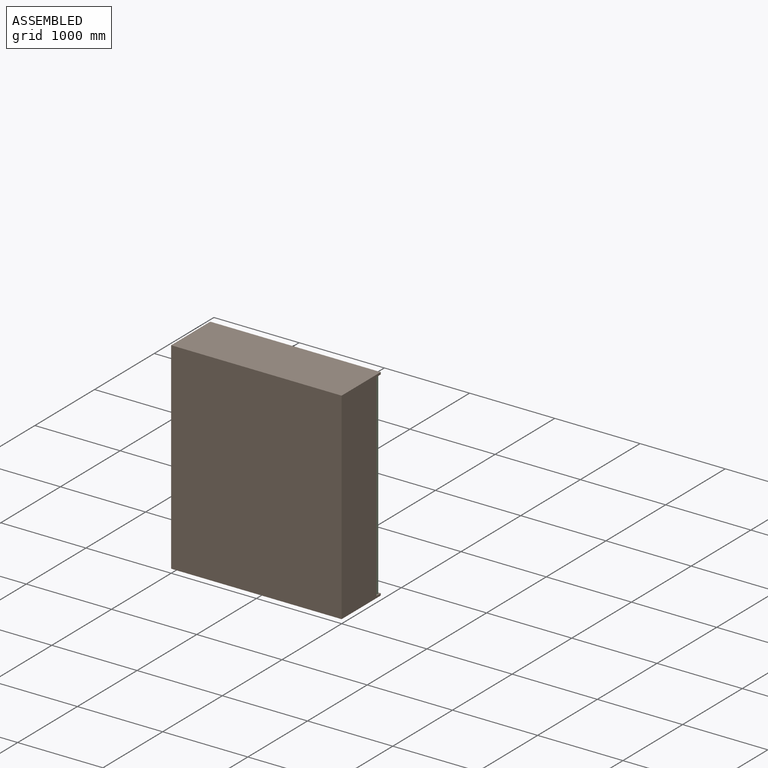
[diagram: assembled view]
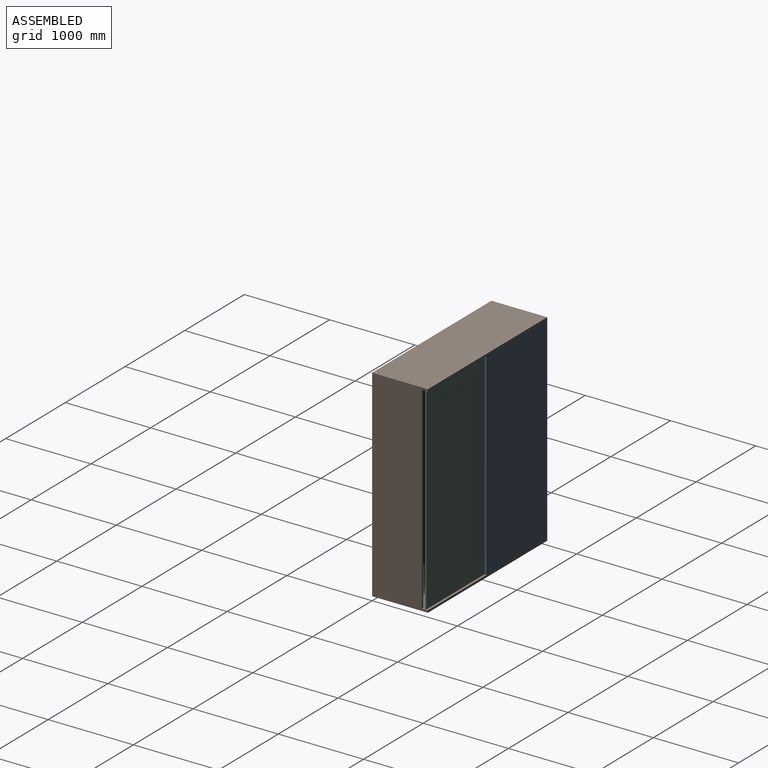
[diagram: assembled view, second angle]
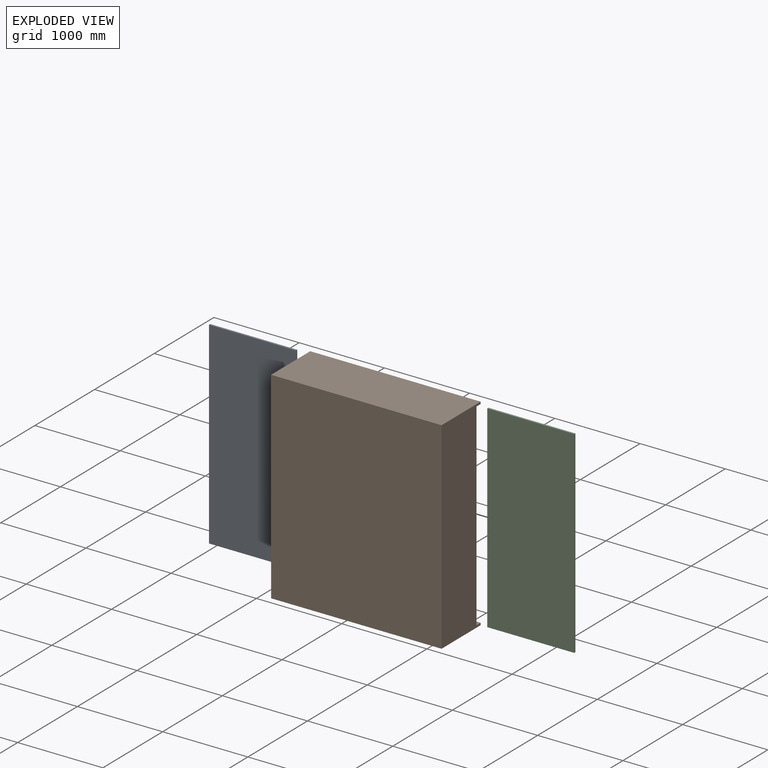
[diagram: exploded view]
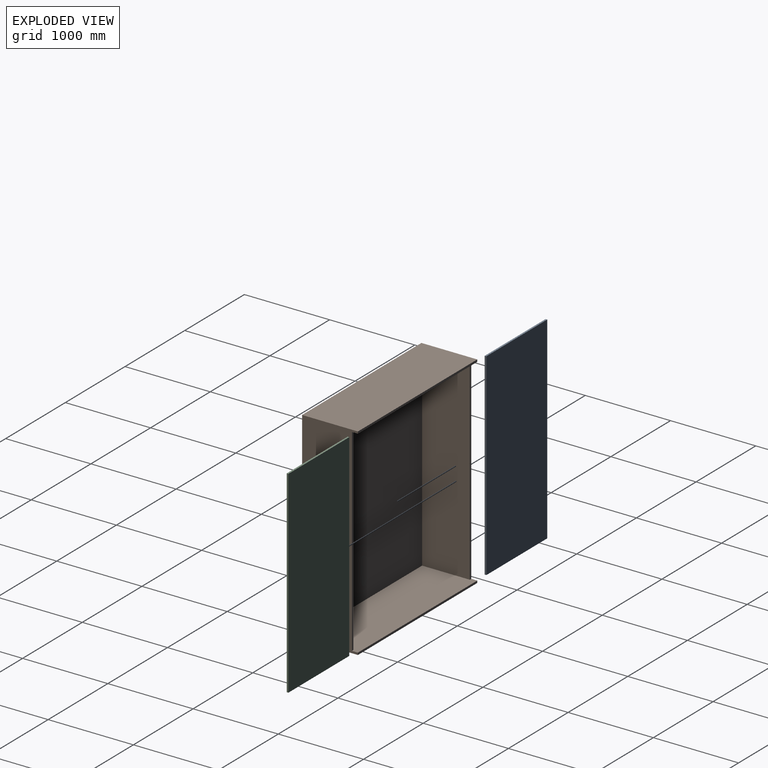
[diagram: exploded view, second angle]
ASSEMBLY  parts=3 mates=3
PART A: 6 faces, bbox 1020x20x2320 mm
  f0: plane 1020x20mm, normal (0,0,1), area 20400mm2, adj f1,f2,f3,f4
  f1: plane 2320x1020mm, normal (0,-1,0), area 2366400mm2, adj f0,f2,f3,f5
  f2: plane 2320x20mm, normal (-1,0,0), area 46400mm2, adj f0,f1,f4,f5
  f3: plane 2320x20mm, normal (1,0,0), area 46400mm2, adj f0,f1,f4,f5
  f4: plane 2320x1020mm, normal (0,1,0), area 2366400mm2, adj f0,f2,f3,f5
  f5: plane 1020x20mm, normal (0,0,-1), area 20400mm2, adj f1,f2,f3,f4
PART B: 14 faces, bbox 2000x655x2370 mm
  f0: plane 2320x25mm, normal (0,1,0), area 58000mm2, adj f2,f8,f9,f11
  f1: plane 2320x25mm, normal (0,1,0), area 58000mm2, adj f3,f8,f9,f12
  f2: plane 2370x655mm, normal (1,0,0), area 1389950mm2, adj f0,f4,f5,f6,f7,f8,f9,f10
  f3: plane 2370x655mm, normal (-1,0,0), area 1389950mm2, adj f1,f4,f5,f6,f7,f8,f9,f10
  f4: plane 2370x2000mm, normal (0,-1,0), area 4740000mm2, adj f2,f3,f5,f6
  f5: plane 2000x655mm, normal (0,0,1), area 1310000mm2, adj f2,f3,f4,f7
  f6: plane 2000x655mm, normal (0,0,-1), area 1310000mm2, adj f2,f3,f4,f10
  f7: plane 2000x25mm, normal (0,1,0), area 50000mm2, adj f2,f3,f5,f8
  f8: plane 2000x630mm, normal (0,0,-1), area 1232000mm2, adj f0,f1,f2,f3,f7,f11,f12,f13
  f9: plane 2000x630mm, normal (0,0,1), area 1232000mm2, adj f0,f1,f2,f3,f10,f11,f12,f13
  f10: plane 2000x25mm, normal (0,1,0), area 50000mm2, adj f2,f3,f6,f9
  f11: plane 2320x560mm, normal (-1,0,0), area 1299200mm2, adj f0,f8,f9,f13
  f12: plane 2320x560mm, normal (1,0,0), area 1299200mm2, adj f1,f8,f9,f13
  f13: plane 2320x1950mm, normal (0,1,0), area 4524000mm2, adj f8,f9,f11,f12
PART C: 6 faces, bbox 1020x20x2320 mm
  f0: plane 1020x20mm, normal (0,0,1), area 20400mm2, adj f1,f2,f3,f4
  f1: plane 2320x20mm, normal (1,0,0), area 46400mm2, adj f0,f2,f3,f5
  f2: plane 2320x1020mm, normal (0,-1,0), area 2366400mm2, adj f0,f1,f4,f5
  f3: plane 2320x1020mm, normal (0,1,0), area 2366400mm2, adj f0,f1,f4,f5
  f4: plane 2320x20mm, normal (-1,0,0), area 46400mm2, adj f0,f2,f3,f5
  f5: plane 1020x20mm, normal (0,0,-1), area 20400mm2, adj f1,f2,f3,f4
PLACE A at identity
PLACE B at identity
PLACE C rot(axis=(-1,0,0),0deg) t=(-12,0,0)mm
MATE slider A.f2 <-> B.f3  axis (1,0,0) through (0,655,2345)mm
MATE slider C.f1 <-> B.f2  axis (-1,0,0) through (1988,630,2345)mm
MATE slider C.f1 <-> A.f3  axis (1,0,0) through (1988,630,2345)mm
